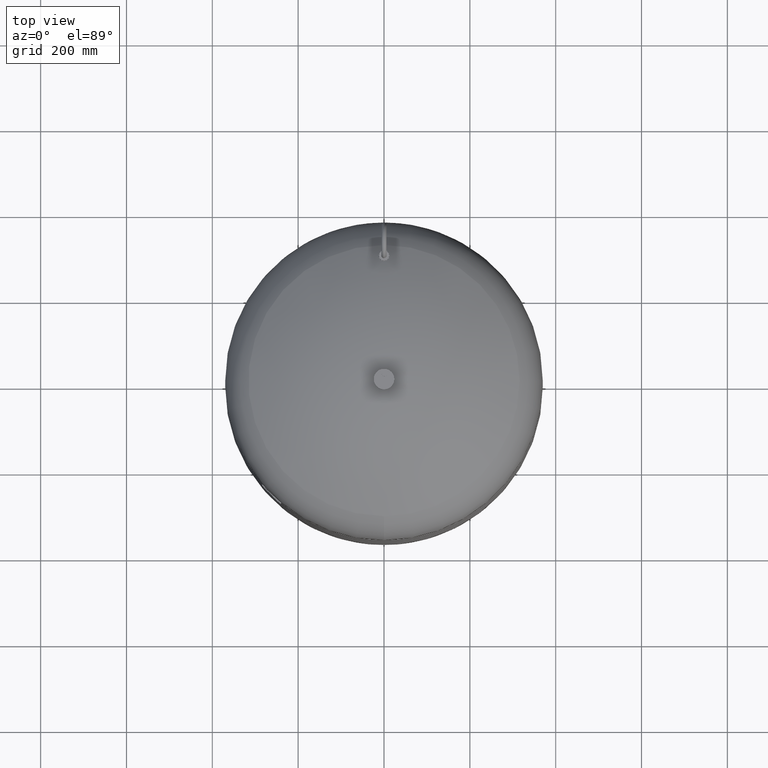
[diagram: clean part render]
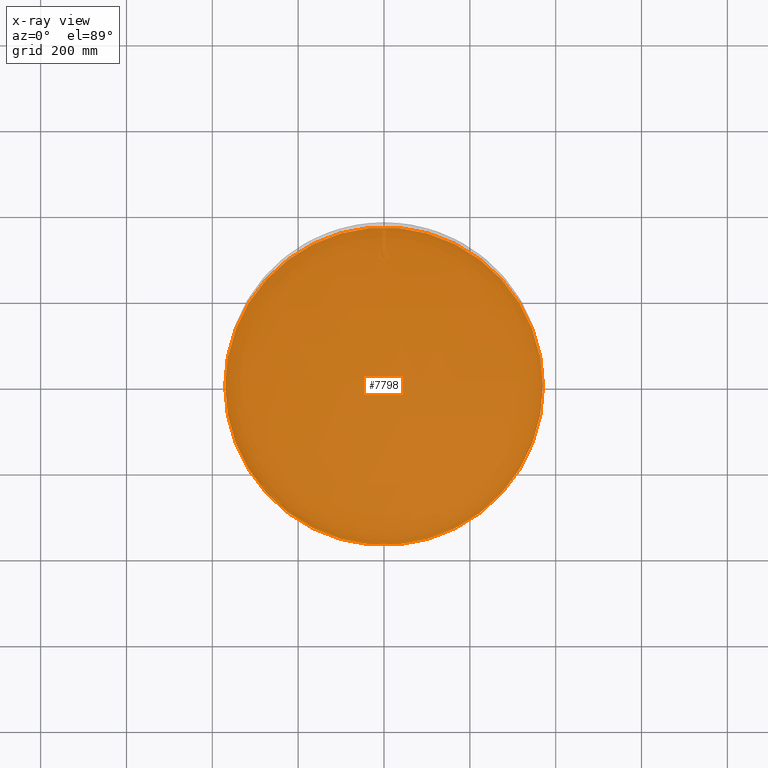
[diagram: x-ray — body ghosted, one internal face saturated and labeled with its STEP entity id]
A machine part, top view, then the same camera in x-ray: the body is ghosted and one INTERNAL B-rep face — a face not visible from any outside direction — is saturated and labeled: STEP entity #7798.
In plain terms, the highlighted planar face has unit normal (0, 0, -1).
Its self-contained STEP definition (entity closure, byte-faithful):
#7590=CARTESIAN_POINT('',(370.0,0.0,369.0));
#7591=VERTEX_POINT('',#7590);
#7607=CARTESIAN_POINT('',(-370.0,-4.531044E-014,369.0));
#7608=VERTEX_POINT('',#7607);
#7615=CARTESIAN_POINT('',(-1.668796E-014,0.0,369.0));
#7616=DIRECTION('',(0.0,0.0,-1.0));
#7617=DIRECTION('',(1.0,0.0,0.0));
#7618=AXIS2_PLACEMENT_3D('',#7615,#7616,#7617);
#7619=CIRCLE('',#7618,370.0);
#7620=EDGE_CURVE('',#7591,#7608,#7619,.T.);
#7777=CARTESIAN_POINT('',(-1.668796E-014,0.0,369.0));
#7778=DIRECTION('',(0.0,0.0,-1.0));
#7779=DIRECTION('',(1.0,0.0,0.0));
#7780=AXIS2_PLACEMENT_3D('',#7777,#7778,#7779);
#7781=CIRCLE('',#7780,370.0);
#7782=EDGE_CURVE('',#7608,#7591,#7781,.T.);
#7789=CARTESIAN_POINT('',(-1.668796E-014,0.0,369.0));
#7790=DIRECTION('',(0.0,0.0,-1.0));
#7791=DIRECTION('',(-1.0,0.0,0.0));
#7792=AXIS2_PLACEMENT_3D('',#7789,#7790,#7791);
#7793=PLANE('',#7792);
#7794=ORIENTED_EDGE('',*,*,#7620,.T.);
#7795=ORIENTED_EDGE('',*,*,#7782,.T.);
#7796=EDGE_LOOP('',(#7794,#7795));
#7797=FACE_OUTER_BOUND('',#7796,.T.);
#7798=ADVANCED_FACE('',(#7797),#7793,.T.);